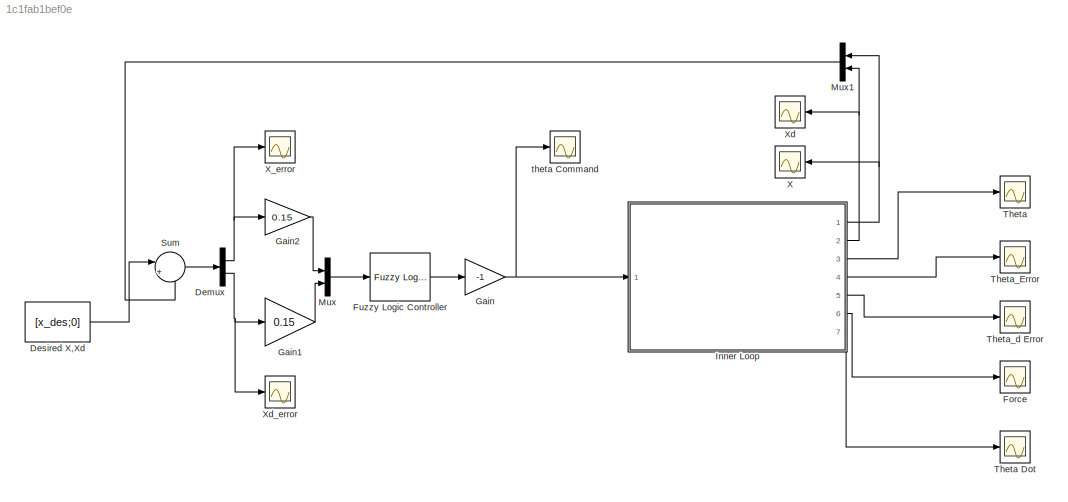
MODEL slx_1c1fab1bef0e
KIND model
CONFIG AbsTol = auto
CONFIG EnableMultiTasking = on
CONFIG FixedStep = ts
CONFIG MaxStep = auto
CONFIG MinStep = auto
CONFIG RelTol = 1e-3
CONFIG SampleTimeConstraint = Unconstrained
CONFIG Solver = ode1
CONFIG SolverName = ode1
CONFIG StartTime = 0.0
CONFIG StopTime = tf
BLOCK [Demux] Demux
  DisplayOption = bar
  Outputs = 2
  Ports = [1, 2]
BLOCK [Constant] Desired X,Xd
  Value = [x_des;0]
BLOCK [Scope] Force
  Floating = off
  NumInputPorts = 1
  Ports = [1]
  ScopeSpecificationString = C++SS(StrPVP('Location','[188, 390, 880, 934]'),StrPVP('Open','off'),MxPVP('AxesTitles',53,'struct(''axes1'',''%<SignalLabel>'')'),MxPVP('ScopeGraphics',56,'struct(''FigureColor'',''[0.5 0.5 0.5]'',''AxesColor'',''[0 0 0]'',''AxesTickColor'',''[1 1 1]'',''LineColors'',''[1 1 0;1 0 1;0 1 1;1 0 0;0 1 0;0 0 1]'',''LineStyles'',''-|-|-|-|-|-'',''LineWidths'',''[0.5 0.5 0.5 0.5 0.5 0.5]'',''MarkerStyle...<+272ch>
BLOCK [Reference] Fuzzy Logic Controller  REF=fuzblock/Fuzzy Logic   (lib defined in mdl_858b3b3e7478)
Controller
  Ports = [1, 1]
  SourceBlock = fuzblock/Fuzzy Logic \nController
  SourceProductBaseCode = FL
  SourceProductName = Fuzzy Logic Toolbox
  SourceType = Fuzzy Inference System
BLOCK [Gain] Gain
  Gain = -1
  OutDataTypeStr = Inherit: Inherit via internal rule
  ParamDataTypeStr = Inherit: Inherit via internal rule
  SaturateOnIntegerOverflow = off
BLOCK [Gain] Gain1
  Gain = 0.15
  OutDataTypeStr = Inherit: Inherit via internal rule
  ParamDataTypeStr = Inherit: Inherit via internal rule
  SaturateOnIntegerOverflow = off
BLOCK [Gain] Gain2
  Gain = 0.15
  OutDataTypeStr = Inherit: Inherit via internal rule
  ParamDataTypeStr = Inherit: Inherit via internal rule
  SaturateOnIntegerOverflow = off
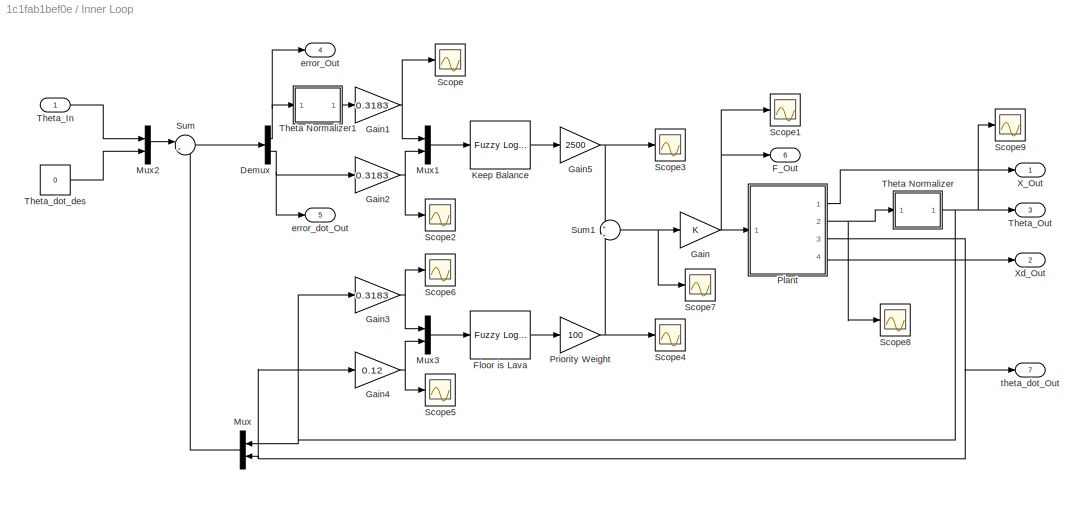
BLOCK [SubSystem] Inner Loop
  Ports = [1, 7]
  RequestExecContextInheritance = off
BLOCK [Demux] Inner Loop/Demux
  DisplayOption = bar
  Outputs = 2
  Ports = [1, 2]
BLOCK [Outport] Inner Loop/F_Out
  IconDisplay = Port number
  Port = 6
BLOCK [Reference] Inner Loop/Floor is Lava  REF=fuzblock/Fuzzy Logic   (lib defined in mdl_858b3b3e7478)
Controller
  Ports = [1, 1]
  SourceBlock = fuzblock/Fuzzy Logic \nController
  SourceProductBaseCode = FL
  SourceProductName = Fuzzy Logic Toolbox
  SourceType = Fuzzy Inference System
BLOCK [Gain] Inner Loop/Gain
  OutDataTypeStr = Inherit: Inherit via internal rule
  ParamDataTypeStr = Inherit: Inherit via internal rule
  SaturateOnIntegerOverflow = off
BLOCK [Gain] Inner Loop/Gain1
  Gain = 0.3183
  OutDataTypeStr = Inherit: Inherit via internal rule
  ParamDataTypeStr = Inherit: Inherit via internal rule
  SaturateOnIntegerOverflow = off
BLOCK [Gain] Inner Loop/Gain2
  Gain = 0.3183
  OutDataTypeStr = Inherit: Inherit via internal rule
  ParamDataTypeStr = Inherit: Inherit via internal rule
  SaturateOnIntegerOverflow = off
BLOCK [Gain] Inner Loop/Gain3
  Gain = 0.3183
  OutDataTypeStr = Inherit: Inherit via internal rule
  ParamDataTypeStr = Inherit: Inherit via internal rule
  SaturateOnIntegerOverflow = off
BLOCK [Gain] Inner Loop/Gain4
  Gain = 0.12
  OutDataTypeStr = Inherit: Inherit via internal rule
  ParamDataTypeStr = Inherit: Inherit via internal rule
  SaturateOnIntegerOverflow = off
BLOCK [Gain] Inner Loop/Gain5
  Gain = 2500
  OutDataTypeStr = Inherit: Inherit via internal rule
  ParamDataTypeStr = Inherit: Inherit via internal rule
  SaturateOnIntegerOverflow = off
BLOCK [Reference] Inner Loop/Keep Balance  REF=fuzblock/Fuzzy Logic   (lib defined in mdl_858b3b3e7478)
Controller
  Ports = [1, 1]
  SourceBlock = fuzblock/Fuzzy Logic \nController
  SourceProductBaseCode = FL
  SourceProductName = Fuzzy Logic Toolbox
  SourceType = Fuzzy Inference System
BLOCK [Mux] Inner Loop/Mux
  DisplayOption = bar
  Inputs = 2
  Ports = [2, 1]
BLOCK [Mux] Inner Loop/Mux1
  DisplayOption = bar
  Inputs = 2
  Ports = [2, 1]
BLOCK [Mux] Inner Loop/Mux2
  DisplayOption = bar
  Inputs = 2
  Ports = [2, 1]
BLOCK [Mux] Inner Loop/Mux3
  DisplayOption = bar
  Inputs = 2
  Ports = [2, 1]
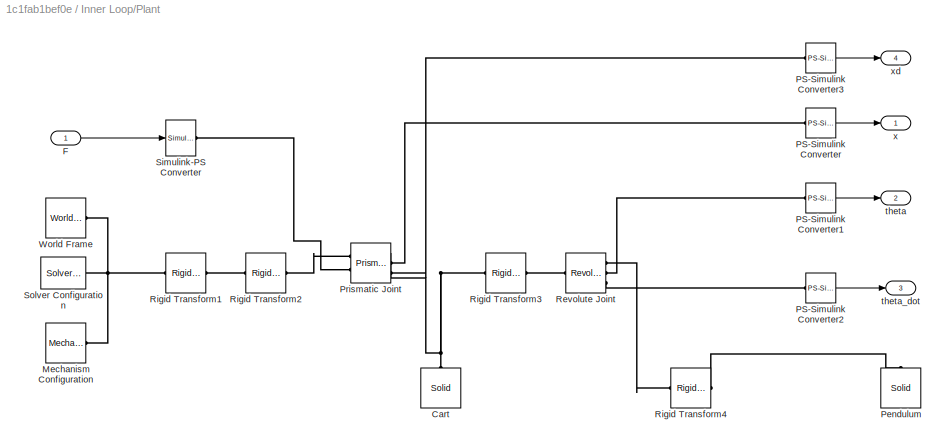
BLOCK [SubSystem] Inner Loop/Plant
  Ports = [1, 4]
  RequestExecContextInheritance = off
BLOCK [Reference] Inner Loop/Plant/Cart  REF=sm_lib/Body Elements/Solid
  Ports = [0, 0, 0, 0, 0, 0, 1]
  SourceBlock = sm_lib/Body Elements/Solid
  SourceProductBaseCode = MS
  SourceProductName = Simscape Multibody
  SourceType = Solid
BLOCK [Inport] Inner Loop/Plant/F
  IconDisplay = Port number
BLOCK [Reference] Inner Loop/Plant/Mechanism Configuration  REF=sm_lib/Utilities/Mechanism
Configuration
  Ports = [0, 0, 0, 0, 0, 0, 1]
  SourceBlock = sm_lib/Utilities/Mechanism\nConfiguration
  SourceProductBaseCode = MS
  SourceProductName = Simscape Multibody
  SourceType = Mechanism\nConfiguration
BLOCK [Reference] Inner Loop/Plant/PS-Simulink Converter  REF=nesl_utility/PS-Simulink
Converter
  Ports = [0, 1, 0, 0, 0, 1]
  SourceBlock = nesl_utility/PS-Simulink\nConverter
  SourceProductBaseCode = SS
  SourceProductName = Simscape
  SourceType = PS-Simulink\nConverter
BLOCK [Reference] Inner Loop/Plant/PS-Simulink Converter1  REF=nesl_utility/PS-Simulink
Converter
  Ports = [0, 1, 0, 0, 0, 1]
  SourceBlock = nesl_utility/PS-Simulink\nConverter
  SourceProductBaseCode = SS
  SourceProductName = Simscape
  SourceType = PS-Simulink\nConverter
BLOCK [Reference] Inner Loop/Plant/PS-Simulink Converter2  REF=nesl_utility/PS-Simulink
Converter
  Ports = [0, 1, 0, 0, 0, 1]
  SourceBlock = nesl_utility/PS-Simulink\nConverter
  SourceProductBaseCode = SS
  SourceProductName = Simscape
  SourceType = PS-Simulink\nConverter
BLOCK [Reference] Inner Loop/Plant/PS-Simulink Converter3  REF=nesl_utility/PS-Simulink
Converter
  Ports = [0, 1, 0, 0, 0, 1]
  SourceBlock = nesl_utility/PS-Simulink\nConverter
  SourceProductBaseCode = SS
  SourceProductName = Simscape
  SourceType = PS-Simulink\nConverter
BLOCK [Reference] Inner Loop/Plant/Pendulum  REF=sm_lib/Body Elements/Solid
  Ports = [0, 0, 0, 0, 0, 0, 1]
  SourceBlock = sm_lib/Body Elements/Solid
  SourceProductBaseCode = MS
  SourceProductName = Simscape Multibody
  SourceType = Solid
BLOCK [Reference] Inner Loop/Plant/Prismatic Joint  REF=sm_lib/Joints/Prismatic
Joint
  Ports = [0, 0, 0, 0, 0, 2, 3]
  SourceBlock = sm_lib/Joints/Prismatic\nJoint
  SourceProductBaseCode = MS
  SourceProductName = Simscape Multibody
  SourceType = Prismatic\nJoint
BLOCK [Reference] Inner Loop/Plant/Revolute Joint  REF=sm_lib/Joints/Revolute Joint
  Ports = [0, 0, 0, 0, 0, 1, 3]
  SourceBlock = sm_lib/Joints/Revolute Joint
  SourceProductBaseCode = MS
  SourceProductName = Simscape Multibody
  SourceType = Revolute Joint
BLOCK [Reference] Inner Loop/Plant/Rigid Transform1  REF=sm_lib/Frames and
Transforms/Rigid
Transform
  Ports = [0, 0, 0, 0, 0, 1, 1]
  SourceBlock = sm_lib/Frames and\nTransforms/Rigid\nTransform
  SourceProductBaseCode = MS
  SourceProductName = Simscape Multibody
  SourceType = Rigid\nTransform
BLOCK [Reference] Inner Loop/Plant/Rigid Transform2  REF=sm_lib/Frames and
Transforms/Rigid
Transform
  Ports = [0, 0, 0, 0, 0, 1, 1]
  SourceBlock = sm_lib/Frames and\nTransforms/Rigid\nTransform
  SourceProductBaseCode = MS
  SourceProductName = Simscape Multibody
  SourceType = Rigid\nTransform
BLOCK [Reference] Inner Loop/Plant/Rigid Transform3  REF=sm_lib/Frames and
Transforms/Rigid
Transform
  Ports = [0, 0, 0, 0, 0, 1, 1]
  SourceBlock = sm_lib/Frames and\nTransforms/Rigid\nTransform
  SourceProductBaseCode = MS
  SourceProductName = Simscape Multibody
  SourceType = Rigid\nTransform
BLOCK [Reference] Inner Loop/Plant/Rigid Transform4  REF=sm_lib/Frames and
Transforms/Rigid
Transform
  Ports = [0, 0, 0, 0, 0, 1, 1]
  SourceBlock = sm_lib/Frames and\nTransforms/Rigid\nTransform
  SourceProductBaseCode = MS
  SourceProductName = Simscape Multibody
  SourceType = Rigid\nTransform
BLOCK [Reference] Inner Loop/Plant/Simulink-PS Converter  REF=nesl_utility/Simulink-PS
Converter
  Ports = [1, 0, 0, 0, 0, 0, 1]
  SourceBlock = nesl_utility/Simulink-PS\nConverter
  SourceProductBaseCode = SS
  SourceProductName = Simscape
  SourceType = Simulink-PS\nConverter
BLOCK [Reference] Inner Loop/Plant/Solver Configuration  REF=nesl_utility/Solver
Configuration
  Ports = [0, 0, 0, 0, 0, 0, 1]
  SourceBlock = nesl_utility/Solver\nConfiguration
  SourceProductBaseCode = SS
  SourceProductName = Simscape
  SourceType = Solver\nConfiguration
BLOCK [Reference] Inner Loop/Plant/World Frame  REF=sm_lib/Frames and
Transforms/World Frame
  Ports = [0, 0, 0, 0, 0, 0, 1]
  SourceBlock = sm_lib/Frames and\nTransforms/World Frame
  SourceProductBaseCode = MS
  SourceProductName = Simscape Multibody
  SourceType = World Frame
BLOCK [Outport] Inner Loop/Plant/theta
  IconDisplay = Port number
  Port = 2
BLOCK [Outport] Inner Loop/Plant/theta_dot
  IconDisplay = Port number
  Port = 3
BLOCK [Outport] Inner Loop/Plant/x
  IconDisplay = Port number
BLOCK [Outport] Inner Loop/Plant/xd
  IconDisplay = Port number
  Port = 4
BLOCK [Gain] Inner Loop/Priority Weight
  Gain = 100
  OutDataTypeStr = Inherit: Inherit via internal rule
  ParamDataTypeStr = Inherit: Inherit via internal rule
  SaturateOnIntegerOverflow = off
BLOCK [Scope] Inner Loop/Scope
  Floating = off
  NumInputPorts = 1
  Ports = [1]
  ScopeSpecificationString = Simulink.scopes.TimeScopeBlockCfg('CurrentConfiguration', extmgr.ConfigurationSet(extmgr.Configuration('Core','General UI',true),extmgr.Configuration('Core','Source UI',true),extmgr.Configuration('Sources','WiredSimulink',true,'DataLoggingLimitDataPoints',true,'DataLoggingSaveFormat','Array','DataLoggingDecimation','1','DataLoggingDecimateData',true),extmgr.Configuration('Visuals','Time Domain',tr...<+1672ch>
BLOCK [Scope] Inner Loop/Scope1
  Floating = off
  NumInputPorts = 1
  Ports = [1]
  ScopeSpecificationString = Simulink.scopes.TimeScopeBlockCfg('CurrentConfiguration', extmgr.ConfigurationSet(extmgr.Configuration('Core','General UI',true),extmgr.Configuration('Core','Source UI',true),extmgr.Configuration('Sources','WiredSimulink',true,'DataLoggingVariableName','ScopeData8','DataLoggingLimitDataPoints',true,'DataLoggingSaveFormat','Array','DataLoggingDecimation','1','DataLoggingDecimateData',true),extmgr.C...<+1717ch>
BLOCK [Scope] Inner Loop/Scope2
  Floating = off
  NumInputPorts = 1
  Ports = [1]
  ScopeSpecificationString = Simulink.scopes.TimeScopeBlockCfg('CurrentConfiguration', extmgr.ConfigurationSet(extmgr.Configuration('Core','General UI',true),extmgr.Configuration('Core','Source UI',true),extmgr.Configuration('Sources','WiredSimulink',true,'DataLoggingVariableName','ScopeData9','DataLoggingLimitDataPoints',true,'DataLoggingSaveFormat','Array','DataLoggingDecimation','1','DataLoggingDecimateData',true),extmgr.C...<+1710ch>
BLOCK [Scope] Inner Loop/Scope3
  Floating = off
  NumInputPorts = 1
  Ports = [1]
  ScopeSpecificationString = Simulink.scopes.TimeScopeBlockCfg('CurrentConfiguration', extmgr.ConfigurationSet(extmgr.Configuration('Core','General UI',true),extmgr.Configuration('Core','Source UI',true),extmgr.Configuration('Sources','WiredSimulink',true,'DataLoggingLimitDataPoints',true,'DataLoggingSaveFormat','Array','DataLoggingDecimation','1','DataLoggingDecimateData',true,'DataLoggingVariableName','ScopeData1'),extmgr.C...<+1717ch>
BLOCK [Scope] Inner Loop/Scope4
  Floating = off
  NumInputPorts = 1
  Ports = [1]
  ScopeSpecificationString = Simulink.scopes.TimeScopeBlockCfg('CurrentConfiguration', extmgr.ConfigurationSet(extmgr.Configuration('Core','General UI',true),extmgr.Configuration('Core','Source UI',true),extmgr.Configuration('Sources','WiredSimulink',true,'DataLoggingLimitDataPoints',true,'DataLoggingSaveFormat','Array','DataLoggingDecimation','1','DataLoggingDecimateData',true,'DataLoggingVariableName','ScopeData2'),extmgr.C...<+1722ch>
BLOCK [Scope] Inner Loop/Scope5
  Floating = off
  NumInputPorts = 1
  Ports = [1]
  ScopeSpecificationString = Simulink.scopes.TimeScopeBlockCfg('CurrentConfiguration', extmgr.ConfigurationSet(extmgr.Configuration('Core','General UI',true),extmgr.Configuration('Core','Source UI',true),extmgr.Configuration('Sources','WiredSimulink',true,'DataLoggingLimitDataPoints',true,'DataLoggingSaveFormat','Array','DataLoggingDecimation','1','DataLoggingDecimateData',true,'DataLoggingVariableName','ScopeData3'),extmgr.C...<+1711ch>
BLOCK [Scope] Inner Loop/Scope6
  Floating = off
  NumInputPorts = 1
  Ports = [1]
  ScopeSpecificationString = Simulink.scopes.TimeScopeBlockCfg('CurrentConfiguration', extmgr.ConfigurationSet(extmgr.Configuration('Core','General UI',true),extmgr.Configuration('Core','Source UI',true),extmgr.Configuration('Sources','WiredSimulink',true,'DataLoggingLimitDataPoints',true,'DataLoggingSaveFormat','Array','DataLoggingDecimation','1','DataLoggingDecimateData',true,'DataLoggingVariableName','ScopeData4'),extmgr.C...<+1713ch>
BLOCK [Scope] Inner Loop/Scope7
  Floating = off
  NumInputPorts = 1
  Ports = [1]
  ScopeSpecificationString = Simulink.scopes.TimeScopeBlockCfg('CurrentConfiguration', extmgr.ConfigurationSet(extmgr.Configuration('Core','General UI',true),extmgr.Configuration('Core','Source UI',true),extmgr.Configuration('Sources','WiredSimulink',true,'DataLoggingVariableName','ScopeData5','DataLoggingLimitDataPoints',true,'DataLoggingSaveFormat','Array','DataLoggingDecimation','1','DataLoggingDecimateData',true),extmgr.C...<+1721ch>
BLOCK [Scope] Inner Loop/Scope8
  Floating = off
  NumInputPorts = 1
  Ports = [1]
  ScopeSpecificationString = Simulink.scopes.TimeScopeBlockCfg('CurrentConfiguration', extmgr.ConfigurationSet(extmgr.Configuration('Core','General UI',true),extmgr.Configuration('Core','Source UI',true),extmgr.Configuration('Sources','WiredSimulink',true,'DataLoggingVariableName','ScopeData6','DataLoggingLimitDataPoints',true,'DataLoggingSaveFormat','Array','DataLoggingDecimation','1','DataLoggingDecimateData',true),extmgr.C...<+1710ch>
BLOCK [Scope] Inner Loop/Scope9
  Floating = off
  NumInputPorts = 1
  Ports = [1]
  ScopeSpecificationString = Simulink.scopes.TimeScopeBlockCfg('CurrentConfiguration', extmgr.ConfigurationSet(extmgr.Configuration('Core','General UI',true),extmgr.Configuration('Core','Source UI',true),extmgr.Configuration('Sources','WiredSimulink',true,'DataLoggingVariableName','ScopeData7','DataLoggingLimitDataPoints',true,'DataLoggingSaveFormat','Array','DataLoggingDecimation','1','DataLoggingDecimateData',true),extmgr.C...<+1719ch>
BLOCK [Sum] Inner Loop/Sum
  IconShape = round
  InputSameDT = off
  Inputs = |+-
  OutDataTypeStr = Inherit: Inherit via internal rule
  Ports = [2, 1]
  SaturateOnIntegerOverflow = off
BLOCK [Sum] Inner Loop/Sum1
  IconShape = round
  InputSameDT = off
  Inputs = +|+
  OutDataTypeStr = Inherit: Inherit via internal rule
  Ports = [2, 1]
  SaturateOnIntegerOverflow = off
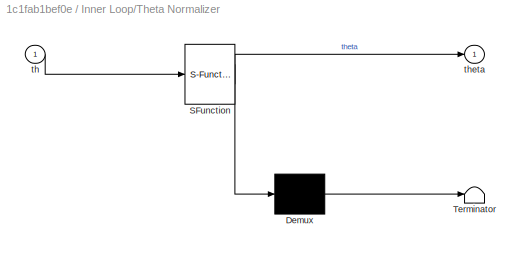
BLOCK [SubSystem] Inner Loop/Theta Normalizer
  ErrorFcn = Stateflow.Translate.translate
  PermitHierarchicalResolution = ExplicitOnly
  Ports = [1, 1]
  RequestExecContextInheritance = off
  SFBlockType = MATLAB Function
  TreatAsAtomicUnit = on
BLOCK [Demux] Inner Loop/Theta Normalizer/ Demux 
  Outputs = 1
  Ports = [1, 1]
BLOCK [S-Function] Inner Loop/Theta Normalizer/ SFunction 
  EnableBusSupport = on
  FunctionName = sf_sfun
  PortCounts = [1 2]
  Ports = [1, 2]
  SFcnIsStateOwnerBlock = off
  SFunctionDeploymentMode = off
  Tag = Stateflow S-Function Cart1 2
BLOCK [Terminator] Inner Loop/Theta Normalizer/ Terminator 
BLOCK [Inport] Inner Loop/Theta Normalizer/th
  IconDisplay = Port number
BLOCK [Outport] Inner Loop/Theta Normalizer/theta
  IconDisplay = Port number
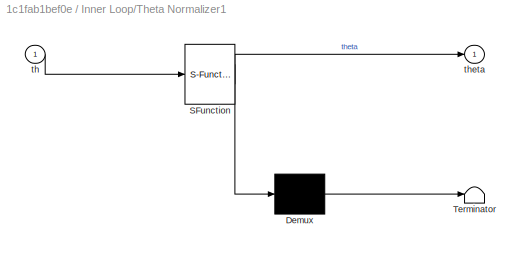
BLOCK [SubSystem] Inner Loop/Theta Normalizer1
  ErrorFcn = Stateflow.Translate.translate
  PermitHierarchicalResolution = ExplicitOnly
  Ports = [1, 1]
  RequestExecContextInheritance = off
  SFBlockType = MATLAB Function
  TreatAsAtomicUnit = on
BLOCK [Demux] Inner Loop/Theta Normalizer1/ Demux 
  Outputs = 1
  Ports = [1, 1]
BLOCK [S-Function] Inner Loop/Theta Normalizer1/ SFunction 
  EnableBusSupport = on
  FunctionName = sf_sfun
  PortCounts = [1 2]
  Ports = [1, 2]
  SFcnIsStateOwnerBlock = off
  SFunctionDeploymentMode = off
  Tag = Stateflow S-Function Cart1 1
BLOCK [Terminator] Inner Loop/Theta Normalizer1/ Terminator 
BLOCK [Inport] Inner Loop/Theta Normalizer1/th
  IconDisplay = Port number
BLOCK [Outport] Inner Loop/Theta Normalizer1/theta
  IconDisplay = Port number
BLOCK [Inport] Inner Loop/Theta_In
  IconDisplay = Port number
BLOCK [Outport] Inner Loop/Theta_Out
  IconDisplay = Port number
  Port = 3
BLOCK [Constant] Inner Loop/Theta_dot_des
  Value = 0
BLOCK [Outport] Inner Loop/X_Out
  IconDisplay = Port number
BLOCK [Outport] Inner Loop/Xd_Out
  IconDisplay = Port number
  Port = 2
BLOCK [Outport] Inner Loop/error_Out
  IconDisplay = Port number
  Port = 4
BLOCK [Outport] Inner Loop/error_dot_Out
  IconDisplay = Port number
  Port = 5
BLOCK [Outport] Inner Loop/theta_dot_Out
  IconDisplay = Port number
  Port = 7
BLOCK [Mux] Mux
  DisplayOption = bar
  Inputs = 2
  Ports = [2, 1]
BLOCK [Mux] Mux1
  DisplayOption = bar
  Inputs = 2
  Ports = [2, 1]
BLOCK [Sum] Sum
  IconShape = round
  InputSameDT = off
  Inputs = |+-
  OutDataTypeStr = Inherit: Inherit via internal rule
  Ports = [2, 1]
  SaturateOnIntegerOverflow = off
BLOCK [Scope] Theta
  Floating = off
  NumInputPorts = 1
  Ports = [1]
  ScopeSpecificationString = C++SS(StrPVP('Location','[1, 49, 1921, 1039]'),StrPVP('Open','off'),MxPVP('AxesTitles',53,'struct(''axes1'',''%<SignalLabel>'')'),MxPVP('ScopeGraphics',56,'struct(''FigureColor'',''[0.5 0.5 0.5]'',''AxesColor'',''[0 0 0]'',''AxesTickColor'',''[1 1 1]'',''LineColors'',''[1 1 0;1 0 1;0 1 1;1 0 0;0 1 0;0 0 1]'',''LineStyles'',''-|-|-|-|-|-'',''LineWidths'',''[0.5 0.5 0.5 0.5 0.5 0.5]'',''MarkerStyles...<+270ch>
BLOCK [Scope] Theta Dot 
  Floating = off
  NumInputPorts = 1
  Ports = [1]
  ScopeSpecificationString = C++SS(StrPVP('Location','[188, 390, 512, 629]'),StrPVP('Open','off'),MxPVP('AxesTitles',53,'struct(''axes1'',''%<SignalLabel>'')'),MxPVP('ScopeGraphics',56,'struct(''FigureColor'',''[0.5 0.5 0.5]'',''AxesColor'',''[0 0 0]'',''AxesTickColor'',''[1 1 1]'',''LineColors'',''[1 1 0;1 0 1;0 1 1;1 0 0;0 1 0;0 0 1]'',''LineStyles'',''-|-|-|-|-|-'',''LineWidths'',''[0.5 0.5 0.5 0.5 0.5 0.5]'',''MarkerStyle...<+272ch>
BLOCK [Scope] Theta_Error
  Floating = off
  NumInputPorts = 1
  Ports = [1]
  ScopeSpecificationString = C++SS(StrPVP('Location','[188, 390, 512, 629]'),StrPVP('Open','off'),MxPVP('AxesTitles',53,'struct(''axes1'',''%<SignalLabel>'')'),MxPVP('ScopeGraphics',56,'struct(''FigureColor'',''[0.5 0.5 0.5]'',''AxesColor'',''[0 0 0]'',''AxesTickColor'',''[1 1 1]'',''LineColors'',''[1 1 0;1 0 1;0 1 1;1 0 0;0 1 0;0 0 1]'',''LineStyles'',''-|-|-|-|-|-'',''LineWidths'',''[0.5 0.5 0.5 0.5 0.5 0.5]'',''MarkerStyle...<+271ch>  <repeated x3 — deduplicated; at blocks: Theta_Error, Theta_d Error, Xd>
BLOCK [Scope] Theta_d Error
  Floating = off
  NumInputPorts = 1
  Ports = [1]
BLOCK [Scope] X
  Floating = off
  NumInputPorts = 1
  Ports = [1]
  ScopeSpecificationString = C++SS(StrPVP('Location','[188, 291, 735, 629]'),StrPVP('Open','off'),MxPVP('AxesTitles',53,'struct(''axes1'',''%<SignalLabel>'')'),MxPVP('ScopeGraphics',56,'struct(''FigureColor'',''[0.5 0.5 0.5]'',''AxesColor'',''[0 0 0]'',''AxesTickColor'',''[1 1 1]'',''LineColors'',''[1 1 0;1 0 1;0 1 1;1 0 0;0 1 0;0 0 1]'',''LineStyles'',''-|-|-|-|-|-'',''LineWidths'',''[0.5 0.5 0.5 0.5 0.5 0.5]'',''MarkerStyle...<+325ch>
BLOCK [Scope] X_error
  Floating = off
  NumInputPorts = 1
  Ports = [1]
  ScopeSpecificationString = Simulink.scopes.TimeScopeBlockCfg('CurrentConfiguration', extmgr.ConfigurationSet(extmgr.Configuration('Core','General UI',true),extmgr.Configuration('Core','Source UI',true),extmgr.Configuration('Sources','WiredSimulink',true,'DataLoggingVariableName','ScopeData1','DataLoggingSaveFormat','StructureWithTime','DataLoggingLimitDataPoints',true,'DataLoggingDecimation','1','DataLoggingDecimateData',tr...<+2100ch>
BLOCK [Scope] Xd
  Floating = off
  NumInputPorts = 1
  Ports = [1]
BLOCK [Scope] Xd_error
  Floating = off
  NumInputPorts = 1
  Ports = [1]
  ScopeSpecificationString = Simulink.scopes.TimeScopeBlockCfg('CurrentConfiguration', extmgr.ConfigurationSet(extmgr.Configuration('Core','General UI',true),extmgr.Configuration('Core','Source UI',true),extmgr.Configuration('Sources','WiredSimulink',true,'DataLoggingVariableName','ScopeData2','DataLoggingSaveFormat','StructureWithTime','DataLoggingLimitDataPoints',true,'DataLoggingDecimation','1','DataLoggingDecimateData',tr...<+1706ch>
BLOCK [Scope] theta Command
  Floating = off
  NumInputPorts = 1
  Ports = [1]
  ScopeSpecificationString = Simulink.scopes.TimeScopeBlockCfg('CurrentConfiguration', extmgr.ConfigurationSet(extmgr.Configuration('Core','General UI',true),extmgr.Configuration('Core','Source UI',true),extmgr.Configuration('Sources','WiredSimulink',true,'DataLoggingSaveFormat','StructureWithTime','DataLoggingLimitDataPoints',true,'DataLoggingDecimation','1','DataLoggingDecimateData',true),extmgr.Configuration('Visuals','Tim...<+1682ch>
NET Demux:1 -> Gain2:1, X_error:1
NET Demux:2 -> Gain1:1, Xd_error:1
LINE Desired X,Xd:1 -> Sum:1
LINE Fuzzy Logic Controller:1 -> Gain:1
LINE Gain1:1 -> Mux:2
LINE Gain2:1 -> Mux:1
NET Gain:1 -> Inner Loop:1, theta Command:1
NET Inner Loop/Demux:1 -> Inner Loop/Theta Normalizer1:1, Inner Loop/error_Out:1
NET Inner Loop/Demux:2 -> Inner Loop/Gain2:1, Inner Loop/error_dot_Out:1
LINE Inner Loop/Floor is Lava:1 -> Inner Loop/Priority Weight:1
NET Inner Loop/Gain1:1 -> Inner Loop/Mux1:1, Inner Loop/Scope:1
NET Inner Loop/Gain2:1 -> Inner Loop/Mux1:2, Inner Loop/Scope2:1
NET Inner Loop/Gain3:1 -> Inner Loop/Mux3:1, Inner Loop/Scope6:1
NET Inner Loop/Gain4:1 -> Inner Loop/Mux3:2, Inner Loop/Scope5:1
NET Inner Loop/Gain5:1 -> Inner Loop/Scope3:1, Inner Loop/Sum1:1
NET Inner Loop/Gain:1 -> Inner Loop/F_Out:1, Inner Loop/Plant:1, Inner Loop/Scope1:1
LINE Inner Loop/Keep Balance:1 -> Inner Loop/Gain5:1
LINE Inner Loop/Mux1:1 -> Inner Loop/Keep Balance:1
LINE Inner Loop/Mux2:1 -> Inner Loop/Sum:1
LINE Inner Loop/Mux3:1 -> Inner Loop/Floor is Lava:1
LINE Inner Loop/Mux:1 -> Inner Loop/Sum:2
LINE Inner Loop/Plant/F:1 -> Inner Loop/Plant/Simulink-PS Converter:1
LINE Inner Loop/Plant/PS-Simulink Converter1:1 -> Inner Loop/Plant/theta:1
LINE Inner Loop/Plant/PS-Simulink Converter2:1 -> Inner Loop/Plant/theta_dot:1
LINE Inner Loop/Plant/PS-Simulink Converter3:1 -> Inner Loop/Plant/xd:1
LINE Inner Loop/Plant/PS-Simulink Converter:1 -> Inner Loop/Plant/x:1
LINE Inner Loop/Plant:1 -> Inner Loop/X_Out:1
NET Inner Loop/Plant:2 -> Inner Loop/Scope8:1, Inner Loop/Theta Normalizer:1
NET Inner Loop/Plant:3 -> Inner Loop/Gain4:1, Inner Loop/Mux:2, Inner Loop/theta_dot_Out:1
LINE Inner Loop/Plant:4 -> Inner Loop/Xd_Out:1
NET Inner Loop/Priority Weight:1 -> Inner Loop/Scope4:1, Inner Loop/Sum1:2
NET Inner Loop/Sum1:1 -> Inner Loop/Gain:1, Inner Loop/Scope7:1
LINE Inner Loop/Sum:1 -> Inner Loop/Demux:1
LINE Inner Loop/Theta Normalizer1:1 -> Inner Loop/Gain1:1
NET Inner Loop/Theta Normalizer:1 -> Inner Loop/Gain3:1, Inner Loop/Mux:1, Inner Loop/Scope9:1, Inner Loop/Theta_Out:1
LINE Inner Loop/Theta_In:1 -> Inner Loop/Mux2:1
LINE Inner Loop/Theta_dot_des:1 -> Inner Loop/Mux2:2
NET Inner Loop:1 -> Mux1:1, X:1
NET Inner Loop:2 -> Mux1:2, Xd:1
LINE Inner Loop:3 -> Theta:1
LINE Inner Loop:4 -> Theta_Error:1
LINE Inner Loop:5 -> Theta_d Error:1
LINE Inner Loop:6 -> Force:1
LINE Inner Loop:7 -> Theta Dot :1
LINE Mux1:1 -> Sum:2
LINE Mux:1 -> Fuzzy Logic Controller:1
LINE Sum:1 -> Demux:1
PNET net1: Inner Loop/Plant/Cart:RConn1 -- Inner Loop/Plant/Prismatic Joint:RConn1 -- Inner Loop/Plant/Rigid Transform3:LConn1
PNET net2: Inner Loop/Plant/Mechanism Configuration:RConn1 -- Inner Loop/Plant/Rigid Transform1:LConn1 -- Inner Loop/Plant/Solver Configuration:RConn1 -- Inner Loop/Plant/World Frame:RConn1
PLINE Inner Loop/Plant/PS-Simulink Converter1:LConn1 -- Inner Loop/Plant/Revolute Joint:RConn2
PLINE Inner Loop/Plant/PS-Simulink Converter2:LConn1 -- Inner Loop/Plant/Revolute Joint:RConn3
PLINE Inner Loop/Plant/PS-Simulink Converter3:LConn1 -- Inner Loop/Plant/Prismatic Joint:RConn3
PLINE Inner Loop/Plant/PS-Simulink Converter:LConn1 -- Inner Loop/Plant/Prismatic Joint:RConn2
PLINE Inner Loop/Plant/Pendulum:RConn1 -- Inner Loop/Plant/Rigid Transform4:RConn1
PLINE Inner Loop/Plant/Prismatic Joint:LConn1 -- Inner Loop/Plant/Rigid Transform2:RConn1
PLINE Inner Loop/Plant/Prismatic Joint:LConn2 -- Inner Loop/Plant/Simulink-PS Converter:RConn1
PLINE Inner Loop/Plant/Revolute Joint:LConn1 -- Inner Loop/Plant/Rigid Transform3:RConn1
PLINE Inner Loop/Plant/Revolute Joint:RConn1 -- Inner Loop/Plant/Rigid Transform4:LConn1
PLINE Inner Loop/Plant/Rigid Transform1:RConn1 -- Inner Loop/Plant/Rigid Transform2:LConn1
note: NET lines group one-source signal fan-out (src -> all destinations, sorted); 1:1 wires keep LINE; PNET lines group multi-terminal physical nets as a canonical sorted terminal list (undirected conserving connections); 2-terminal nets keep the pairwise PLINE form
CHART Inner Loop/Theta Normalizer1 states=1 transitions=1
  STATE_LABEL 'eML_blk_kernel()'
  STATE_LABEL 'SCRIPT:\nfunction theta = fcn(th)\n\ntheta = th - 2*pi*floor( (th+pi)/(2*pi) );\n\n% theta1 = wrapToPi(th);\n\n\n%  %% Old Conversion\n% % if -3.14 <= th && th <=3.14\n% %     theta = th;\n% % else\n%     if(th > 0)\n%         theta = mod(th,3.14);\n%     else\n%         theta = -1 * mod(th,3.14);\n%     end\nend\n'
CHART Inner Loop/Theta Normalizer states=1 transitions=1
  STATE_LABEL 'eML_blk_kernel()'
  STATE_LABEL 'SCRIPT:\nfunction theta = fcn(th)\n\ntheta = th - 2*pi*floor( (th+pi)/(2*pi) );\n\n%theta = wrapToPi(th1);\n\n\n%  %% old conversion\n% if -3.14 <= th && th <=3.14\n%     theta = th;\n% else\n%     if(th > 0)\n%         theta = mod(th,3.14);\n%     else\n%         theta = -1 * mod(th,3.14);\n%     end\nend\n'
